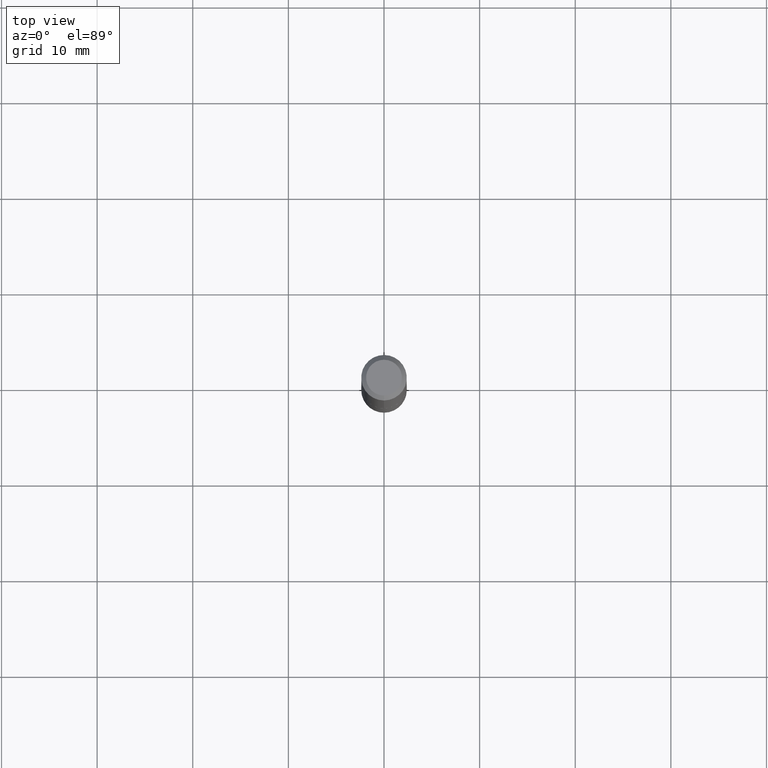
[diagram: clean part render]
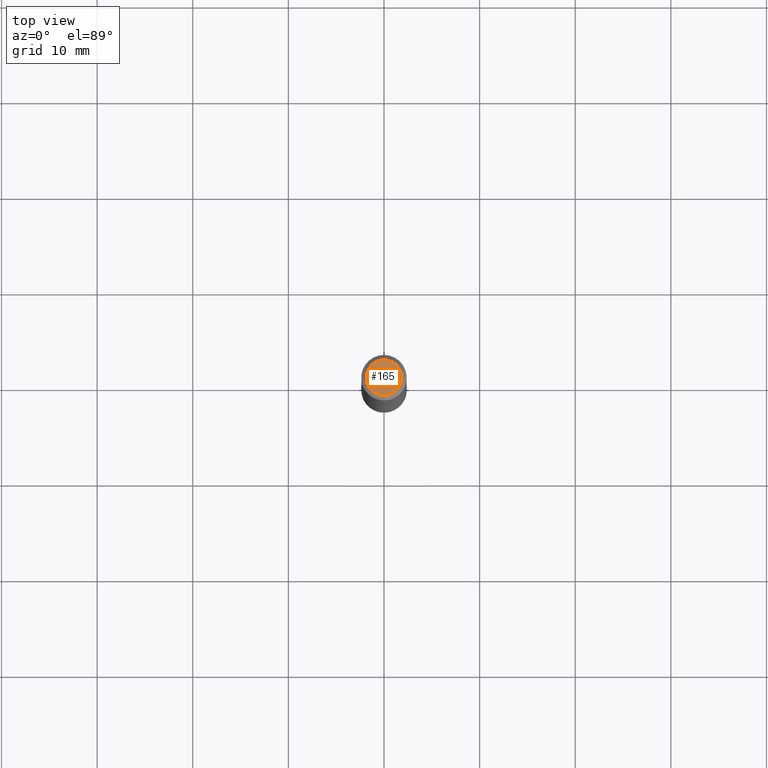
[diagram: same view with one face highlighted and labeled with its STEP entity id]
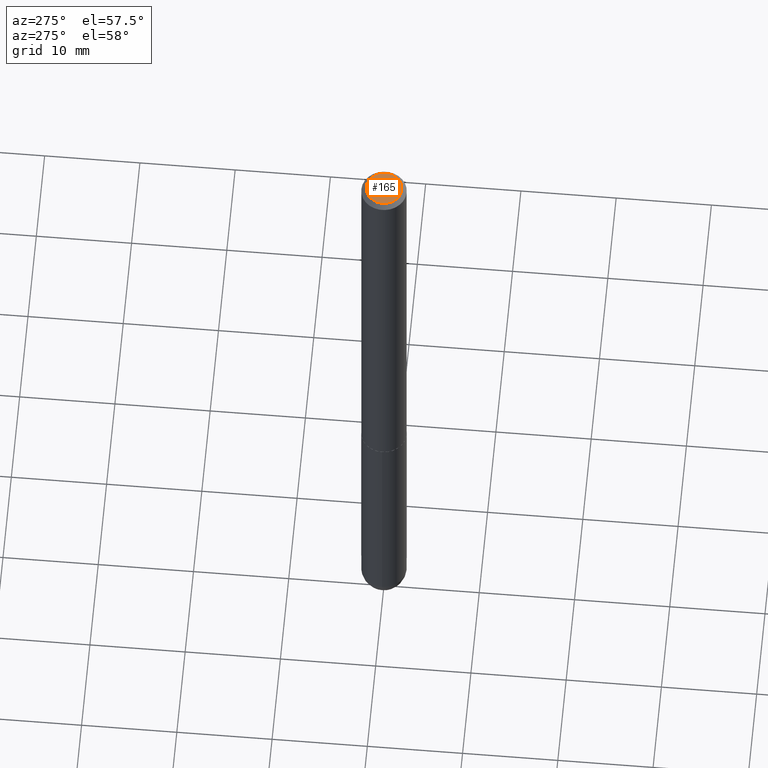
[diagram: same view with one face highlighted and labeled with its STEP entity id]
A machine part, top view. The second image highlights one B-rep face of the part: STEP entity #165.
A second angle (auxiliary view) of the same face is appended — the face is thin or edge-on in the first view.
In plain terms, the highlighted planar face has unit normal (0, -0, -1).
Its self-contained STEP definition (entity closure, byte-faithful):
#53 = AXIS2_PLACEMENT_3D ( 'NONE', #343, #177, #100 ) ;
#59 = FACE_OUTER_BOUND ( 'NONE', #309, .T. ) ;
#72 = CIRCLE ( 'NONE', #294, 0.07374999999999994060 ) ;
#79 = DIRECTION ( 'NONE',  ( -6.982962677686267499E-15, -1.000000000000000000, 3.491476182096211275E-15 ) ) ;
#94 = DIRECTION ( 'NONE',  ( 2.445472407122274464E-29, -3.491476182096211275E-15, -1.000000000000000000 ) ) ;
#100 = DIRECTION ( 'NONE',  ( -6.982962677686267499E-15, -1.000000000000000000, 3.491476182096211275E-15 ) ) ;
#101 = VERTEX_POINT ( 'NONE', #297 ) ;
#114 = CARTESIAN_POINT ( 'NONE',  ( -3.235934848960953060E-45, 4.620043726135303486E-31, 1.323235068830263226E-16 ) ) ;
#122 = ORIENTED_EDGE ( 'NONE', *, *, #412, .T. ) ;
#165 = ADVANCED_FACE ( 'NONE', ( #59 ), #392, .F. ) ;
#169 = CARTESIAN_POINT ( 'NONE',  ( 5.149934974793617952E-16, 0.07374999999999994060, -1.913346149880821875E-16 ) ) ;
#177 = DIRECTION ( 'NONE',  ( -2.445472407122275024E-29, 3.491476182096210881E-15, 1.000000000000000000 ) ) ;
#190 = AXIS2_PLACEMENT_3D ( 'NONE', #169, #94, #225 ) ;
#225 = DIRECTION ( 'NONE',  ( 6.982962677686265922E-15, 1.000000000000000000, -3.491476182096211275E-15 ) ) ;
#233 = EDGE_CURVE ( 'NONE', #101, #411, #338, .T. ) ;
#294 = AXIS2_PLACEMENT_3D ( 'NONE', #114, #410, #79 ) ;
#297 = CARTESIAN_POINT ( 'NONE',  ( 5.848231242562249948E-16, 0.07374999999999994060, -1.251728615465690015E-16 ) ) ;
#309 = EDGE_LOOP ( 'NONE', ( #334, #122 ) ) ;
#334 = ORIENTED_EDGE ( 'NONE', *, *, #233, .T. ) ;
#338 = CIRCLE ( 'NONE', #53, 0.07374999999999994060 ) ;
#343 = CARTESIAN_POINT ( 'NONE',  ( -3.235934848960953060E-45, 4.620043726135303486E-31, 1.323235068830263226E-16 ) ) ;
#381 = CARTESIAN_POINT ( 'NONE',  ( -5.745667073133654568E-16, -0.07374999999999994060, 3.898198753126216961E-16 ) ) ;
#392 = PLANE ( 'NONE',  #190 ) ;
#410 = DIRECTION ( 'NONE',  ( -2.445472407122275024E-29, 3.491476182096210881E-15, 1.000000000000000000 ) ) ;
#411 = VERTEX_POINT ( 'NONE', #381 ) ;
#412 = EDGE_CURVE ( 'NONE', #411, #101, #72, .T. ) ;